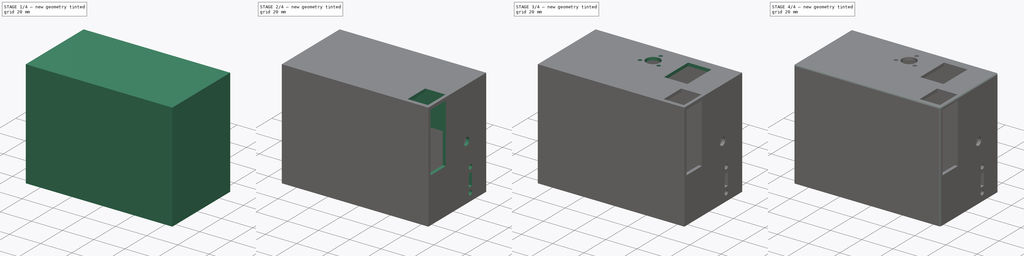
[diagram: build sequence overview — one tinted view per stage of 4, left to right]
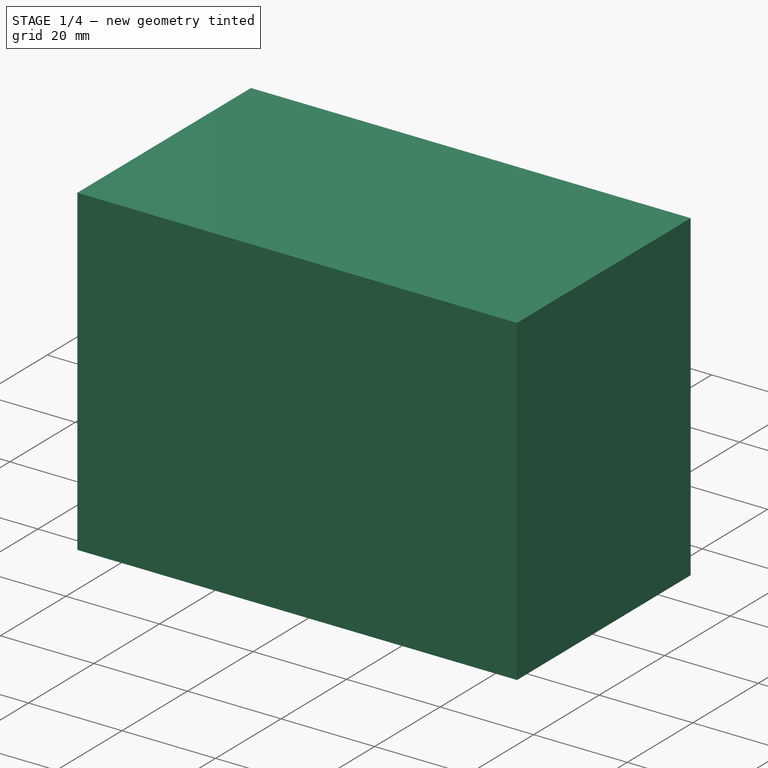
[diagram: stage 1 of 4 — iso view after this stage's code; geometry added in this stage tinted green]
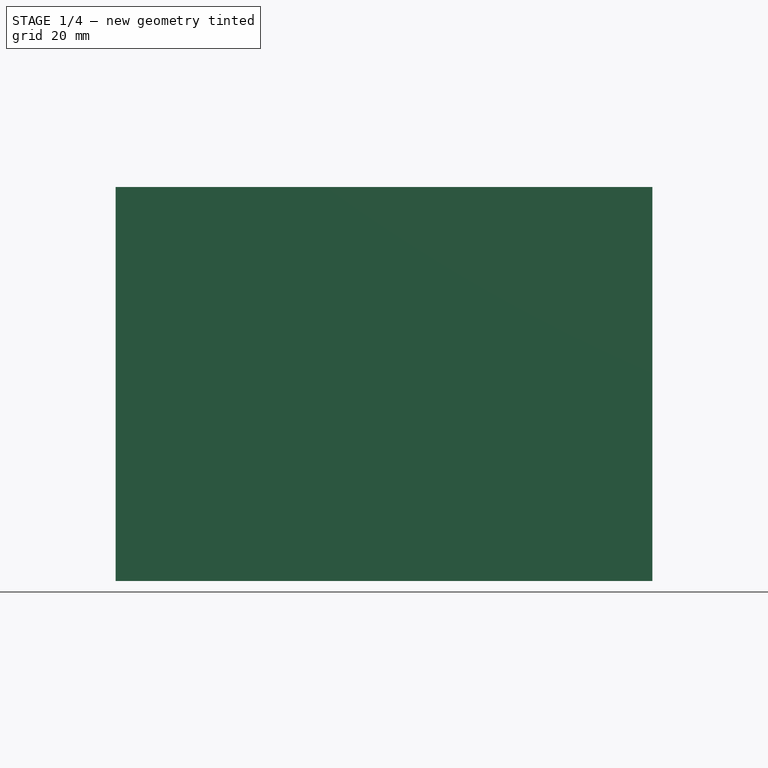
[diagram: stage 1 of 4 — front view after this stage's code; geometry added in this stage tinted green]
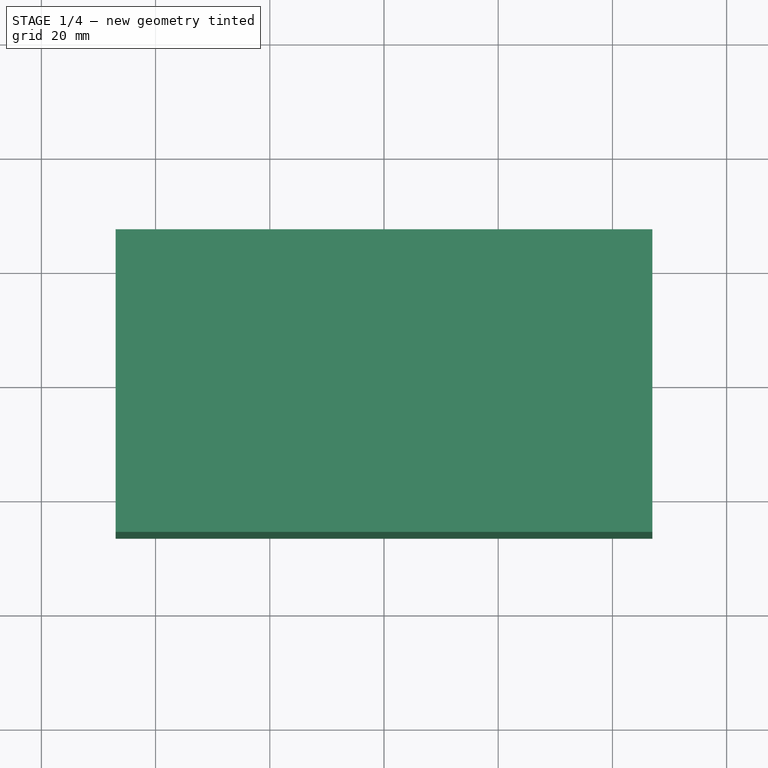
[diagram: stage 1 of 4 — top view after this stage's code; geometry added in this stage tinted green]
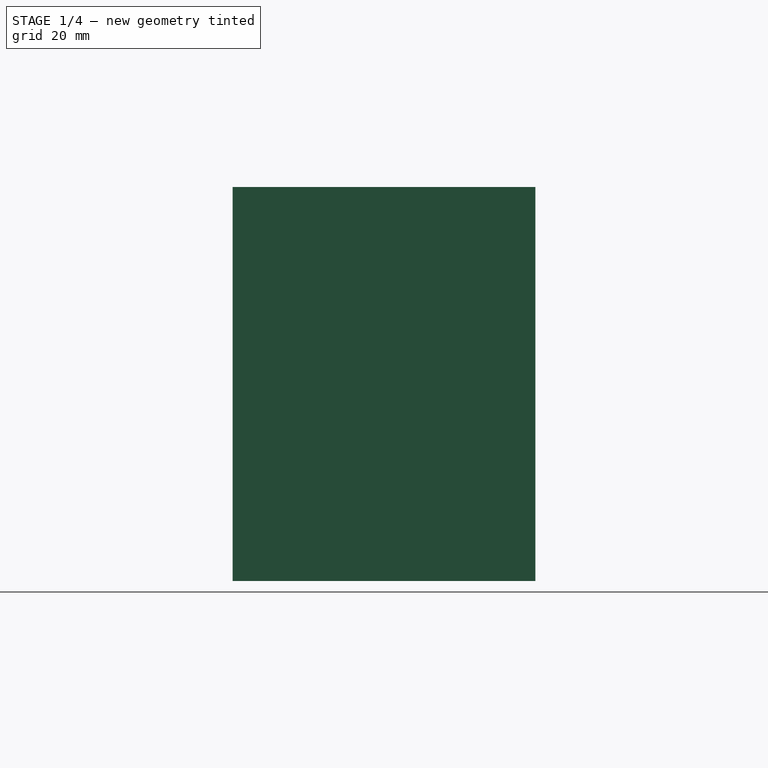
[diagram: stage 1 of 4 — right view after this stage's code; geometry added in this stage tinted green]
FCSTD DOCUMENT  (FreeCAD 0.18R16146 (Git))
Label: receiver_box
License: All rights reserved
LicenseURL: http://en.wikipedia.org/wiki/All_rights_reserved
objects: Sketcher::SketchObject×11, PartDesign::Pocket×9, PartDesign::Pad×2, PartDesign::Plane×1, PartDesign::Fillet×1, PartDesign::Body×1
note: 36 computed .brp shape members not serialized (recipe doc carries the construction recipe); baked Part::Feature solids carry a one-line shape summary decoded from their .brp

FEATURE [Sketcher::SketchObject] Sketch
  MapMode = 5
  Support = -> [XY_Plane]
  sketch-geometry (4):
    g0: LineSegment StartX=-47 StartY=26.5 StartZ=0 EndX=47 EndY=26.5 EndZ=0
    g1: LineSegment StartX=47 StartY=26.5 StartZ=0 EndX=47 EndY=-26.5 EndZ=0
    g2: LineSegment StartX=47 StartY=-26.5 StartZ=0 EndX=-47 EndY=-26.5 EndZ=0
    g3: LineSegment StartX=-47 StartY=-26.5 StartZ=0 EndX=-47 EndY=26.5 EndZ=0
  constraints (10):
    c: Coincident(g0,g1)
    c: Coincident(g1,g2)
    c: Coincident(g2,g3)
    c: Coincident(g3,g0)
    c: Horizontal(g2)
    c: Vertical(g1)
    c: Symmetric(g0,g0,g-2)
    c: Symmetric(g2,g0,g-1)
    c: DistanceX(g0,g0) = 94
    c: DistanceY(g3,g3) = 53
FEATURE [PartDesign::Pad] Pad
  Length = 69
  Length2 = 100
  Profile = -> Sketch
  Type = 0
FEATURE [Sketcher::SketchObject] Sketch001
  MapMode = 5
  Placement = pos=(0,0,0) rot=(1,0,0;3.14159rad)
  Support = -> [Pad]
  sketch-geometry (25):
    g0: LineSegment StartX=-40.0503 StartY=24.5 StartZ=0 EndX=-45 EndY=19.5503 EndZ=0
    g1: LineSegment StartX=-45 StartY=19.5503 StartZ=0 EndX=-45 EndY=5.1 EndZ=0
    g2: LineSegment StartX=-45 StartY=5.1 StartZ=0 EndX=-40 EndY=5.1 EndZ=0
    g3: LineSegment StartX=-40 StartY=5.1 StartZ=0 EndX=-40 EndY=3.3 EndZ=0
    g4: LineSegment StartX=-40 StartY=3.3 StartZ=0 EndX=-45 EndY=3.3 EndZ=0
    g5: LineSegment StartX=-45 StartY=3.3 StartZ=0 EndX=-45 EndY=1.5 EndZ=0
    g6: LineSegment StartX=-45 StartY=1.5 StartZ=0 EndX=-40 EndY=1.5 EndZ=0
    g7: LineSegment StartX=-40 StartY=1.5 StartZ=0 EndX=-40 EndY=-0.3 EndZ=0
    g8: LineSegment StartX=-40 StartY=-0.3 StartZ=0 EndX=-45 EndY=-0.3 EndZ=0
    g9: LineSegment StartX=-45 StartY=-0.3 StartZ=0 EndX=-45 EndY=-19.5503 EndZ=0
    g10: LineSegment StartX=-45 StartY=-19.5503 StartZ=0 EndX=-40.0503 EndY=-24.5 EndZ=0
    g11: LineSegment StartX=-40.0503 StartY=-24.5 StartZ=0 EndX=40.0503 EndY=-24.5 EndZ=0
    g12: LineSegment StartX=40.0503 StartY=-24.5 StartZ=0 EndX=45 EndY=-19.5503 EndZ=0
    g13: LineSegment StartX=45 StartY=-19.5503 StartZ=0 EndX=45 EndY=-0.3 EndZ=0
    g14: LineSegment StartX=45 StartY=-0.3 StartZ=0 EndX=40 EndY=-0.3 EndZ=0
    g15: LineSegment StartX=40 StartY=-0.3 StartZ=0 EndX=40 EndY=1.5 EndZ=0
    g16: LineSegment StartX=40 StartY=1.5 StartZ=0 EndX=45 EndY=1.5 EndZ=0
    g17: LineSegment StartX=45 StartY=1.5 StartZ=0 EndX=45 EndY=3.3 EndZ=0
    g18: LineSegment StartX=45 StartY=3.3 StartZ=0 EndX=40 EndY=3.3 EndZ=0
    g19: LineSegment StartX=40 StartY=3.3 StartZ=0 EndX=40 EndY=5.1 EndZ=0
    g20: LineSegment StartX=40 StartY=5.1 StartZ=0 EndX=45 EndY=5.1 EndZ=0
    g21: LineSegment StartX=45 StartY=5.1 StartZ=0 EndX=45 EndY=5.1 EndZ=0
    g22: LineSegment StartX=45 StartY=5.1 StartZ=0 EndX=17 EndY=5.1 EndZ=0
    g23: LineSegment StartX=17 StartY=5.1 StartZ=0 EndX=17 EndY=24.5 EndZ=0
    g24: LineSegment StartX=17 StartY=24.5 StartZ=0 EndX=-40.0503 EndY=24.5 EndZ=0
  constraints (71):
    c: Coincident(g0,g1)
    c: Vertical(g1)
    c: Coincident(g1,g2)
    c: Horizontal(g2)
    c: Coincident(g2,g3)
    c: Vertical(g3)
    c: Coincident(g3,g4)
    c: Horizontal(g4)
    c: Coincident(g4,g5)
    c: Vertical(g5)
    c: Coincident(g5,g6)
    c: Horizontal(g6)
    c: Coincident(g6,g7)
    c: Vertical(g7)
    c: Coincident(g7,g8)
    c: Horizontal(g8)
    c: Coincident(g8,g9)
    c: Coincident(g9,g10)
    c: Coincident(g10,g11)
    c: Coincident(g11,g12)
    c: Coincident(g12,g13)
    c: Vertical(g13)
    c: Coincident(g13,g14)
    c: Horizontal(g14)
    c: Coincident(g14,g15)
    c: Vertical(g15)
    c: Coincident(g15,g16)
    c: Horizontal(g16)
    c: Coincident(g16,g17)
    c: Vertical(g17)
    c: Coincident(g17,g18)
    c: Horizontal(g18)
    c: Coincident(g18,g19)
    c: Vertical(g19)
    c: Coincident(g19,g20)
    c: Horizontal(g20)
    c: Coincident(g20,g21)
    c: Vertical(g21)
    c: Coincident(g21,g22)
    c: Horizontal(g22)
    c: Coincident(g22,g23)
    c: Vertical(g23)
    c: Coincident(g23,g24)
    c: Coincident(g24,g0)
    c: Horizontal(g24)
    c: Symmetric(g11,g10,g-2)
    c: Symmetric(g9,g12,g-2)
    c: Symmetric(g9,g0,g-1)
    c: Symmetric(g0,g10,g-1)
    c: DistanceX(g9,g12) = 90
    c: Angle(g11,g10) = 2.35619
    c: DistanceY(g10,g0) = 49
    c: Distance(g0) = 7
    c: Equal(g2,g4)
    c: Equal(g4,g6)
    c: Equal(g6,g8)
    c: Equal(g8,g20)
    c: Equal(g20,g18)
    c: Equal(g18,g16)
    c: Equal(g16,g14)
    c: Equal(g3,g5)
    c: Equal(g5,g7)
    c: Equal(g7,g19)
    c: Equal(g19,g17)
    c: Equal(g17,g15)
    c: DistanceY(g7,g7) = 1.8
    c: Equal(g9,g13)
    c: DistanceX(g2,g2) = 5
    c: DistanceY(g11,g16) = 26
    c: DistanceY(g23,g23) = 19.4
    c: DistanceX(g22,g22) = 28
FEATURE [PartDesign::Pocket] Pocket
  BaseFeature = -> Pad
  Length = 67
  Length2 = 100
  Profile = -> Sketch001
  Type = 0
FEATURE [Sketcher::SketchObject] Sketch002
  MapMode = 5
  Placement = pos=(0,0,0) rot=(1,0,0;3.14159rad)
  Support = -> [Pocket]
  sketch-geometry (11):
    g0: LineSegment [constr] StartX=-44 StartY=23.5 StartZ=0 EndX=44 EndY=23.5 EndZ=0
    g1: LineSegment [constr] StartX=44 StartY=23.5 StartZ=0 EndX=44 EndY=-23.5 EndZ=0
    g2: LineSegment [constr] StartX=44 StartY=-23.5 StartZ=0 EndX=-44 EndY=-23.5 EndZ=0
    g3: LineSegment [constr] StartX=-44 StartY=-23.5 StartZ=0 EndX=-44 EndY=23.5 EndZ=0
    g4: Circle CenterX=-44 CenterY=23.5 CenterZ=0 NormalX=0 NormalY=0 NormalZ=1 AngleXU=0 Radius=1.15
    g5: Circle CenterX=-44 CenterY=-23.5 CenterZ=0 NormalX=0 NormalY=0 NormalZ=1 AngleXU=0 Radius=1.15
    g6: Circle CenterX=44 CenterY=-23.5 CenterZ=0 NormalX=0 NormalY=0 NormalZ=1 AngleXU=0 Radius=1.15
    g7: LineSegment StartX=45 StartY=24.5 StartZ=0 EndX=17 EndY=24.5 EndZ=0
    g8: LineSegment StartX=17 StartY=24.5 StartZ=0 EndX=17 EndY=5.1 EndZ=0
    g9: LineSegment StartX=17 StartY=5.1 StartZ=0 EndX=45 EndY=5.1 EndZ=0
    g10: LineSegment StartX=45 StartY=5.1 StartZ=0 EndX=45 EndY=24.5 EndZ=0
  constraints (28):
    c: Coincident(g0,g1)
    c: Coincident(g1,g2)
    c: Coincident(g2,g3)
    c: Coincident(g3,g0)
    c: Horizontal(g2)
    c: Vertical(g3)
    c: Symmetric(g0,g0,g-2)
    c: Symmetric(g0,g1,g-1)
    c: DistanceY(g1,g1) = 47
    c: DistanceX(g0,g0) = 88
    c: Coincident(g4,g0)
    c: Coincident(g5,g2)
    c: Coincident(g6,g1)
    c: Equal(g4,g5)
    c: Equal(g5,g6)
    c: Diameter(g4) = 2.3
    c: Coincident(g7,g8)
    c: Coincident(g8,g9)
    c: Coincident(g9,g10)
    c: Coincident(g10,g7)
    c: Horizontal(g7)
    c: Horizontal(g9)
    c: Vertical(g8)
    c: Vertical(g10)
    c: DistanceY(g10,g10) = 19.4
    c: DistanceX(g7,g7) = 28
    c: DistanceY(g-1,g7) = 24.5
    c: DistanceX(g-1,g7) = 45
FEATURE [PartDesign::Pocket] Pocket001
  BaseFeature = -> Pocket
  Length = 47
  Length2 = 100
  Profile = -> Sketch002
  Type = 0
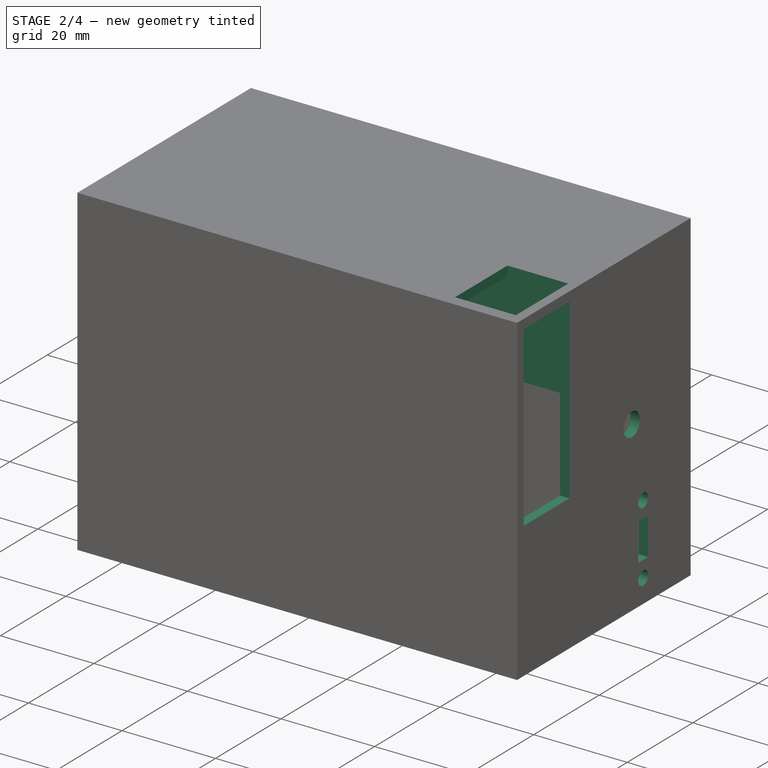
[diagram: stage 2 of 4 — iso view after this stage's code; geometry added in this stage tinted green]
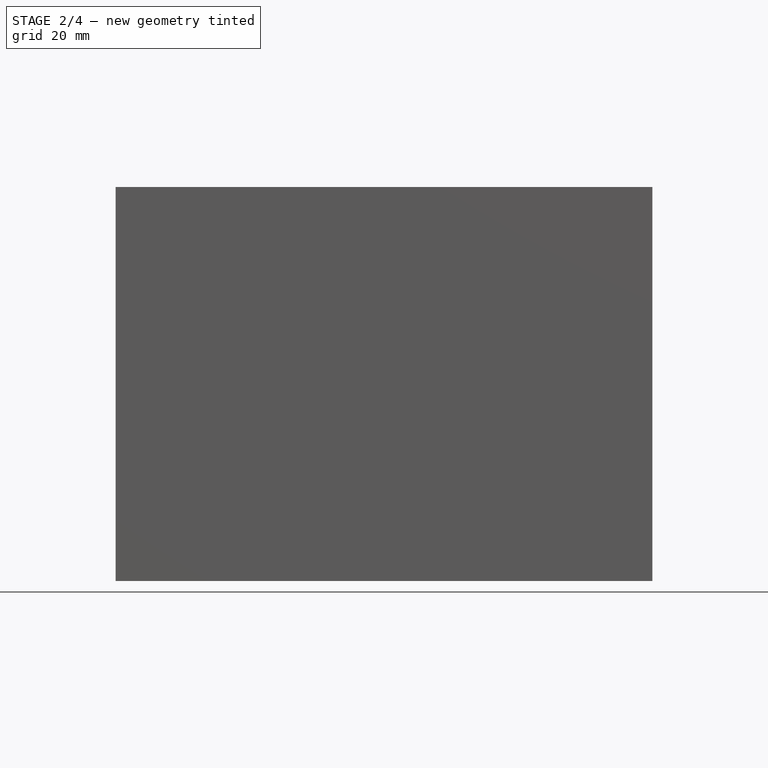
[diagram: stage 2 of 4 — front view after this stage's code; geometry added in this stage tinted green]
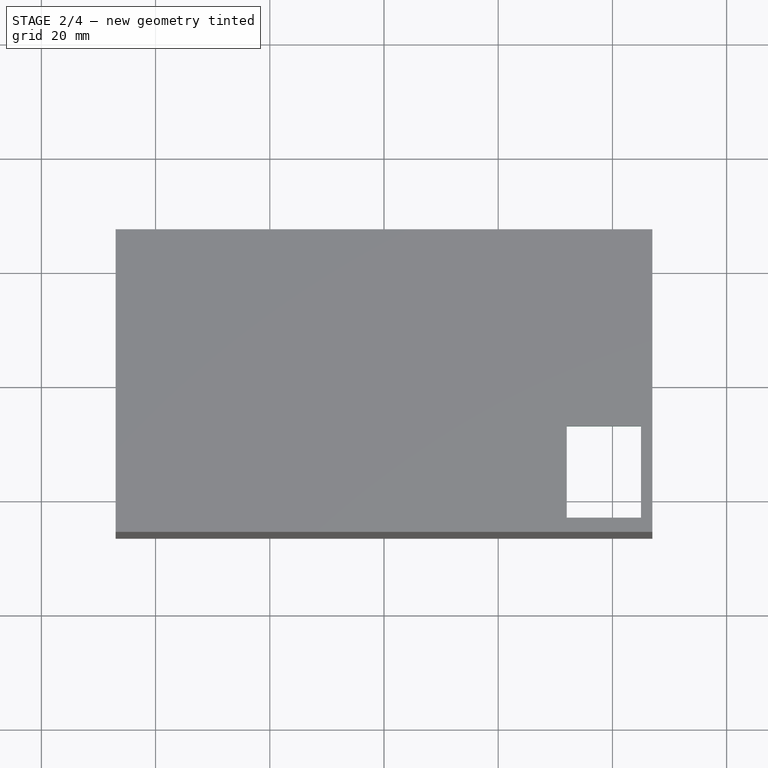
[diagram: stage 2 of 4 — top view after this stage's code; geometry added in this stage tinted green]
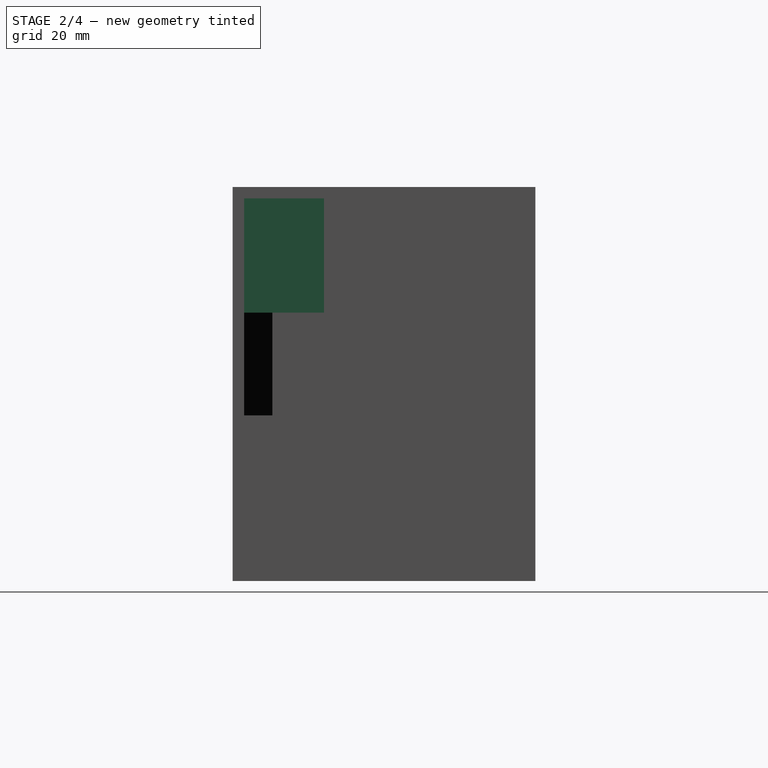
[diagram: stage 2 of 4 — right view after this stage's code; geometry added in this stage tinted green]
FEATURE [Sketcher::SketchObject] Sketch003
  MapMode = 5
  Placement = pos=(0,0,47) rot=(1,0,0;3.14159rad)
  Support = -> [Pocket001]
  sketch-geometry (4):
    g0: LineSegment StartX=45 StartY=24.5 StartZ=0 EndX=18.8 EndY=24.5 EndZ=0
    g1: LineSegment StartX=18.8 StartY=24.5 StartZ=0 EndX=18.8 EndY=7.3 EndZ=0
    g2: LineSegment StartX=18.8 StartY=7.3 StartZ=0 EndX=45 EndY=7.3 EndZ=0
    g3: LineSegment StartX=45 StartY=7.3 StartZ=0 EndX=45 EndY=24.5 EndZ=0
  constraints (12):
    c: Coincident(g0,g1)
    c: Coincident(g1,g2)
    c: Coincident(g2,g3)
    c: Coincident(g3,g0)
    c: Horizontal(g0)
    c: Horizontal(g2)
    c: Vertical(g1)
    c: Vertical(g3)
    c: DistanceX(g-1,g0) = 45
    c: DistanceY(g-1,g0) = 24.5
    c: DistanceX(g2,g2) = 26.2
    c: DistanceY(g1,g1) = 17.2
FEATURE [PartDesign::Pocket] Pocket002
  BaseFeature = -> Pocket001
  Length = 20
  Length2 = 100
  Profile = -> Sketch003
  Type = 0
FEATURE [Sketcher::SketchObject] Sketch004
  MapMode = 5
  Placement = pos=(0,0,67) rot=(1,0,0;3.14159rad)
  Support = -> [Pocket002]
  sketch-geometry (4):
    g0: LineSegment StartX=32 StartY=24 StartZ=0 EndX=45 EndY=24 EndZ=0
    g1: LineSegment StartX=45 StartY=24 StartZ=0 EndX=45 EndY=8 EndZ=0
    g2: LineSegment StartX=45 StartY=8 StartZ=0 EndX=32 EndY=8 EndZ=0
    g3: LineSegment StartX=32 StartY=8 StartZ=0 EndX=32 EndY=24 EndZ=0
  constraints (12):
    c: Coincident(g0,g1)
    c: Coincident(g1,g2)
    c: Coincident(g2,g3)
    c: Coincident(g3,g0)
    c: Horizontal(g0)
    c: Horizontal(g2)
    c: Vertical(g1)
    c: Vertical(g3)
    c: DistanceY(g-1,g0) = 24
    c: DistanceY(g1,g1) = 16
    c: DistanceX(g0,g0) = 13
    c: DistanceX(g-1,g0) = 45
FEATURE [PartDesign::Pocket] Pocket003
  BaseFeature = -> Pocket002
  Length = 5
  Length2 = 100
  Profile = -> Sketch004
  Type = 0
FEATURE [Sketcher::SketchObject] Sketch005
  MapMode = 5
  Placement = pos=(47,0,0) rot=(0.57735,0.57735,0.57735;2.0944rad)
  Support = -> [Pocket003]
  sketch-geometry (12):
    g0: LineSegment StartX=-24.5 StartY=29 StartZ=0 EndX=-10.5 EndY=29 EndZ=0
    g1: LineSegment StartX=-10.5 StartY=29 StartZ=0 EndX=-10.5 EndY=67 EndZ=0
    g2: LineSegment StartX=-10.5 StartY=67 StartZ=0 EndX=-24.5 EndY=67 EndZ=0
    g3: LineSegment StartX=-24.5 StartY=67 StartZ=0 EndX=-24.5 EndY=29 EndZ=0
    g4: LineSegment [constr] StartX=12 StartY=0 StartZ=0 EndX=12 EndY=50 EndZ=0
    g5: Circle CenterX=12 CenterY=5 CenterZ=0 NormalX=0 NormalY=0 NormalZ=1 AngleXU=0 Radius=1.5
    g6: Circle CenterX=12 CenterY=20 CenterZ=0 NormalX=0 NormalY=0 NormalZ=1 AngleXU=0 Radius=1.5
    g7: LineSegment StartX=10.5 StartY=8.5 StartZ=0 EndX=13.5 EndY=8.5 EndZ=0
    g8: LineSegment StartX=13.5 StartY=8.5 StartZ=0 EndX=13.5 EndY=16.5 EndZ=0
    g9: LineSegment StartX=13.5 StartY=16.5 StartZ=0 EndX=10.5 EndY=16.5 EndZ=0
    g10: LineSegment StartX=10.5 StartY=16.5 StartZ=0 EndX=10.5 EndY=8.5 EndZ=0
    g11: Circle CenterX=8.5 CenterY=36 CenterZ=0 NormalX=0 NormalY=0 NormalZ=1 AngleXU=0 Radius=2.5
  constraints (36):
    c: Coincident(g0,g1)
    c: Coincident(g1,g2)
    c: Coincident(g2,g3)
    c: Coincident(g3,g0)
    c: Horizontal(g0)
    c: Horizontal(g2)
    c: Vertical(g1)
    c: Vertical(g3)
    c: DistanceX(g2,g2) = 14
    c: DistanceY(g1,g1) = 38
    c: DistanceX(g0,g-1) = 24.5
    c: DistanceY(g-1,g2) = 67
    c: PointOnObject(g4,g-1)
    c: Vertical(g4)
    c: PointOnObject(g5,g4)
    c: PointOnObject(g6,g4)
    c: DistanceY(g5,g6) = 15
    c: Equal(g6,g5)
    c: Diameter(g6) = 3
    c: Coincident(g7,g8)
    c: Coincident(g8,g9)
    c: Coincident(g9,g10)
    c: Coincident(g10,g7)
    c: Horizontal(g7)
    c: Vertical(g8)
    c: Vertical(g10)
    c: Symmetric(g8,g9,g4)
    c: DistanceY(g8,g8) = 8
    c: DistanceX(g9,g9) = 3
    c: DistanceY(g5,g7) = 3.5
    c: DistanceY(g-1,g5) = 5
    c: DistanceX(g-1,g4) = 12
    c: DistanceY(g4,g4) = 50
    c: Diameter(g11) = 5
    c: DistanceY(g-1,g11) = 36
    c: DistanceX(g-1,g11) = 8.5
FEATURE [PartDesign::Pocket] Pocket004
  BaseFeature = -> Pocket003
  Length = 5
  Length2 = 100
  Profile = -> Sketch005
  Type = 0
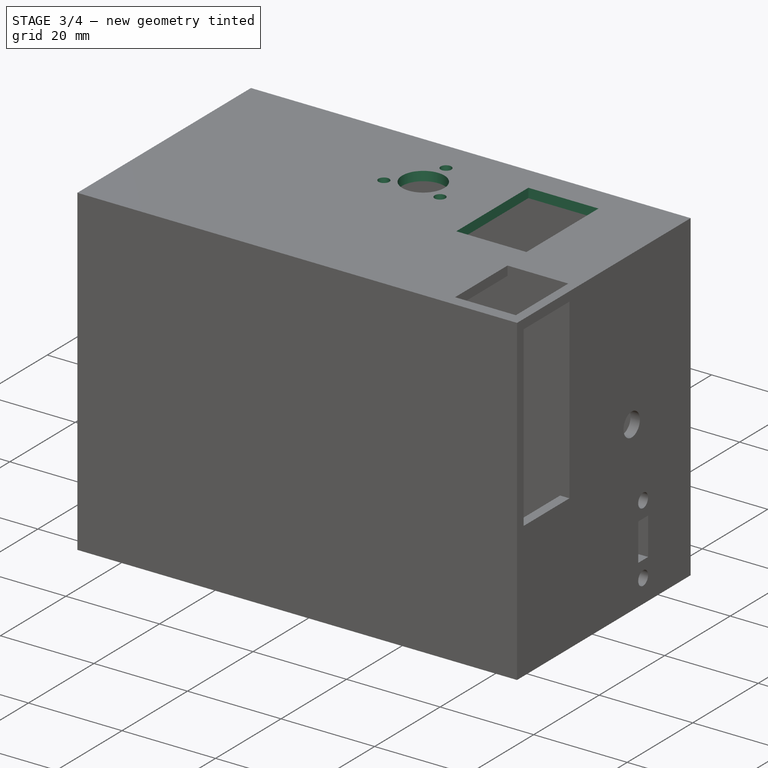
[diagram: stage 3 of 4 — iso view after this stage's code; geometry added in this stage tinted green]
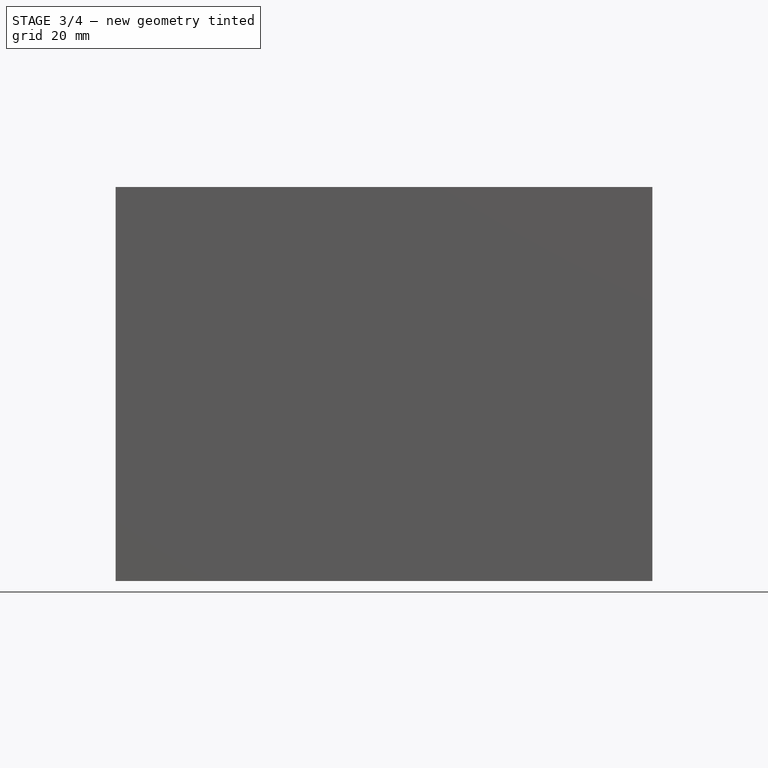
[diagram: stage 3 of 4 — front view after this stage's code; geometry added in this stage tinted green]
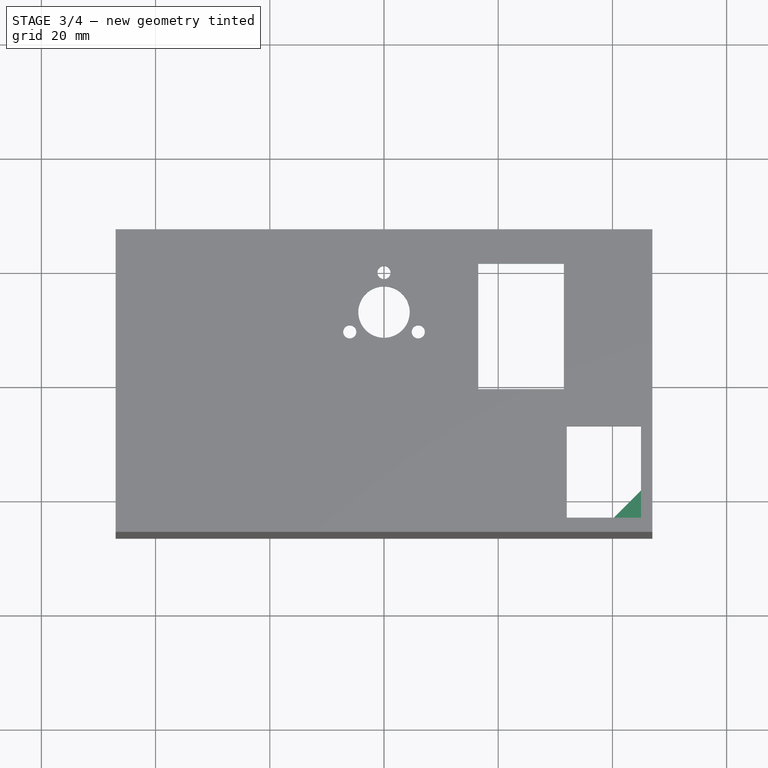
[diagram: stage 3 of 4 — top view after this stage's code; geometry added in this stage tinted green]
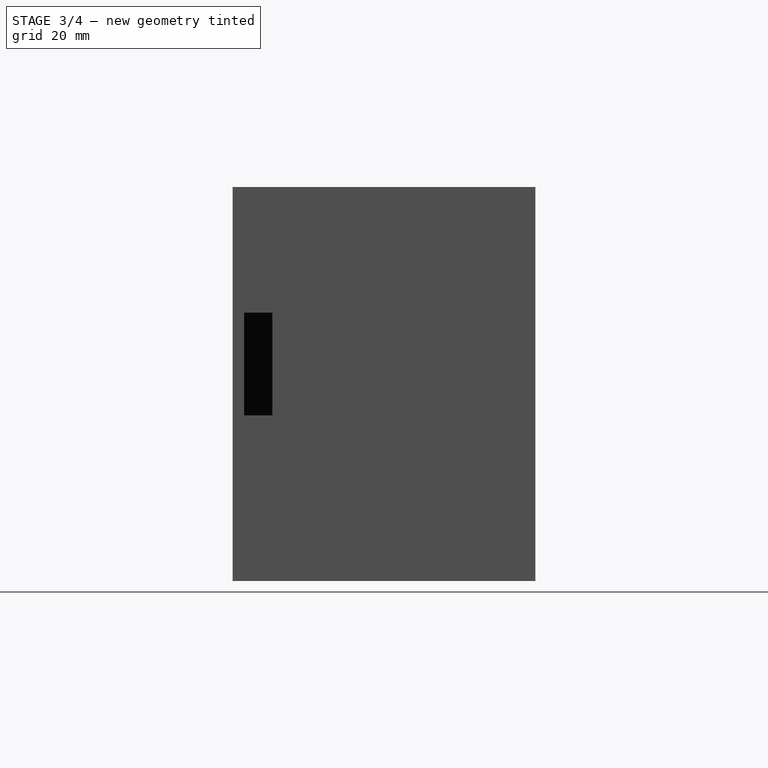
[diagram: stage 3 of 4 — right view after this stage's code; geometry added in this stage tinted green]
FEATURE [Sketcher::SketchObject] Sketch006
  MapMode = 5
  Placement = pos=(0,26.5,0) rot=(0,0.707107,0.707107;3.14159rad)
  Support = -> [Pocket004]
  sketch-geometry (17):
    g0: Circle CenterX=0 CenterY=39 CenterZ=0 NormalX=0 NormalY=0 NormalZ=1 AngleXU=0 Radius=2.5
    g1: ArcOfCircle CenterX=0 CenterY=39 CenterZ=0 NormalX=0 NormalY=0 NormalZ=1 AngleXU=0 Radius=10 StartAngle=2.61799 EndAngle=3.66519
    g2: ArcOfCircle CenterX=0 CenterY=39 CenterZ=0 NormalX=0 NormalY=0 NormalZ=1 AngleXU=0 Radius=8 StartAngle=2.61799 EndAngle=3.66519
    g3: LineSegment StartX=-5 StartY=30.3397 StartZ=0 EndX=-4 EndY=32.0718 EndZ=0
    g4: LineSegment StartX=5 StartY=30.3397 StartZ=0 EndX=4 EndY=32.0718 EndZ=0
    g5: LineSegment StartX=-8.66025 StartY=34 StartZ=0 EndX=-6.9282 EndY=35 EndZ=0
    g6: LineSegment StartX=-8.66025 StartY=44 StartZ=0 EndX=-6.9282 EndY=43 EndZ=0
    g7: LineSegment StartX=-4 StartY=45.9282 StartZ=0 EndX=-5 EndY=47.6603 EndZ=0
    g8: LineSegment StartX=4 StartY=45.9282 StartZ=0 EndX=5 EndY=47.6603 EndZ=0
    g9: LineSegment StartX=6.9282 StartY=43 StartZ=0 EndX=8.66025 EndY=44 EndZ=0
    g10: LineSegment StartX=6.9282 StartY=35 StartZ=0 EndX=8.66025 EndY=34 EndZ=0
    g11: ArcOfCircle CenterX=0 CenterY=39 CenterZ=0 NormalX=0 NormalY=0 NormalZ=1 AngleXU=0 Radius=10 StartAngle=4.18879 EndAngle=5.23599
    g12: ArcOfCircle CenterX=0 CenterY=39 CenterZ=0 NormalX=0 NormalY=0 NormalZ=1 AngleXU=0 Radius=8 StartAngle=4.18879 EndAngle=5.23599
    g13: ArcOfCircle CenterX=0 CenterY=39 CenterZ=0 NormalX=0 NormalY=0 NormalZ=1 AngleXU=0 Radius=8 StartAngle=5.75959 EndAngle=6.80678
    g14: ArcOfCircle CenterX=0 CenterY=39 CenterZ=0 NormalX=0 NormalY=0 NormalZ=1 AngleXU=0 Radius=10 StartAngle=5.75959 EndAngle=6.80678
    g15: ArcOfCircle CenterX=0 CenterY=39 CenterZ=0 NormalX=0 NormalY=0 NormalZ=1 AngleXU=0 Radius=10 StartAngle=1.0472 EndAngle=2.0944
    g16: ArcOfCircle CenterX=0 CenterY=39 CenterZ=0 NormalX=0 NormalY=0 NormalZ=1 AngleXU=0 Radius=8 StartAngle=1.0472 EndAngle=2.0944
  constraints (55):
    c: PointOnObject(g1,g-2)
    c: DistanceY(g-1,g1) = 39
    c: Diameter(g0) = 5
    c: Coincident(g2,g1)
    c: PointOnObject(g8,g1)
    c: PointOnObject(g1,g3)
    c: PointOnObject(g4,g1)
    c: PointOnObject(g1,g4)
    c: PointOnObject(g9,g1)
    c: PointOnObject(g1,g5)
    c: PointOnObject(g10,g1)
    c: PointOnObject(g1,g6)
    c: Angle(g5,g6) = 2.0944
    c: Angle(g4,g3) = 2.0944
    c: Angle(g5,g3) = 0.523599
    c: Angle(g-2,g3) = 2.61799
    c: Diameter(g2) = 16
    c: Diameter(g1) = 20
    c: Tangent(g4,g7)
    c: PointOnObject(g8,g2)
    c: Tangent(g3,g8)
    c: PointOnObject(g9,g2)
    c: Tangent(g5,g9)
    c: PointOnObject(g10,g2)
    c: Tangent(g6,g10)
    c: PointOnObject(g4,g2)
    c: Coincident(g2,g6)
    c: Coincident(g16,g7)
    c: Coincident(g1,g6)
    c: Coincident(g15,g7)
    c: Equal(g1,g11)
    c: Coincident(g1,g5)
    c: Coincident(g11,g3)
    c: Coincident(g1,g11)
    c: Equal(g2,g12)
    c: Coincident(g2,g5)
    c: Coincident(g12,g3)
    c: Coincident(g2,g12)
    c: Equal(g12,g13)
    c: PointOnObject(g12,g4)
    c: PointOnObject(g13,g10)
    c: Coincident(g12,g13)
    c: Equal(g11,g14)
    c: PointOnObject(g11,g4)
    c: PointOnObject(g14,g10)
    c: Coincident(g11,g14)
    c: Equal(g14,g15)
    c: PointOnObject(g14,g9)
    c: PointOnObject(g15,g8)
    c: Coincident(g14,g15)
    c: Equal(g13,g16)
    c: PointOnObject(g13,g9)
    c: PointOnObject(g16,g8)
    c: Coincident(g13,g16)
    c: Coincident(g0,g1)
FEATURE [PartDesign::Pocket] Pocket005
  BaseFeature = -> Pocket004
  Length = 5
  Length2 = 100
  Profile = -> Sketch006
  Type = 0
FEATURE [Sketcher::SketchObject] Sketch007
  MapMode = 5
  Placement = pos=(0,0,67) rot=(1,0,0;3.14159rad)
  Support = -> [Pocket005]
  sketch-geometry (12):
    g0: Circle CenterX=0 CenterY=-12 CenterZ=0 NormalX=0 NormalY=0 NormalZ=1 AngleXU=0 Radius=4.5
    g1: LineSegment [constr] StartX=6 StartY=-8.5359 StartZ=0 EndX=-6 EndY=-8.5359 EndZ=0
    g2: LineSegment [constr] StartX=-6 StartY=-8.5359 StartZ=0 EndX=0 EndY=-18.9282 EndZ=0
    g3: LineSegment [constr] StartX=0 StartY=-18.9282 StartZ=0 EndX=6 EndY=-8.5359 EndZ=0
    g4: Circle [constr] CenterX=0 CenterY=-12 CenterZ=0 NormalX=0 NormalY=0 NormalZ=1 AngleXU=0 Radius=6.9282
    g5: Circle CenterX=6 CenterY=-8.5359 CenterZ=0 NormalX=0 NormalY=0 NormalZ=1 AngleXU=0 Radius=1.15
    g6: Circle CenterX=0 CenterY=-18.9282 CenterZ=0 NormalX=0 NormalY=0 NormalZ=1 AngleXU=0 Radius=1.15
    g7: Circle CenterX=-6 CenterY=-8.5359 CenterZ=0 NormalX=0 NormalY=0 NormalZ=1 AngleXU=0 Radius=1.15
    g8: LineSegment StartX=16.5 StartY=1.5 StartZ=0 EndX=31.5 EndY=1.5 EndZ=0
    g9: LineSegment StartX=31.5 StartY=1.5 StartZ=0 EndX=31.5 EndY=-20.5 EndZ=0
    g10: LineSegment StartX=31.5 StartY=-20.5 StartZ=0 EndX=16.5 EndY=-20.5 EndZ=0
    g11: LineSegment StartX=16.5 StartY=-20.5 StartZ=0 EndX=16.5 EndY=1.5 EndZ=0
  constraints (32):
    c: PointOnObject(g0,g-2)
    c: Diameter(g0) = 9
    c: Coincident(g1,g2)
    c: Coincident(g2,g3)
    c: Coincident(g3,g1)
    c: Equal(g1,g2)
    c: Equal(g1,g3)
    c: PointOnObject(g1,g4)
    c: PointOnObject(g2,g4)
    c: PointOnObject(g3,g4)
    c: Coincident(g4,g0)
    c: Horizontal(g1)
    c: DistanceY(g0,g-1) = 12
    c: DistanceX(g1,g1) = 12
    c: Coincident(g5,g1)
    c: Coincident(g6,g2)
    c: Coincident(g7,g1)
    c: Equal(g5,g6)
    c: Equal(g6,g7)
    c: Diameter(g5) = 2.3
    c: Coincident(g8,g9)
    c: Coincident(g9,g10)
    c: Coincident(g10,g11)
    c: Coincident(g11,g8)
    c: Horizontal(g8)
    c: Horizontal(g10)
    c: Vertical(g9)
    c: Vertical(g11)
    c: DistanceX(g8,g8) = 15
    c: DistanceY(g9,g9) = 22
    c: DistanceY(g-1,g8) = 1.5
    c: DistanceX(g9) = 31.5
FEATURE [PartDesign::Pocket] Pocket006
  BaseFeature = -> Pocket005
  Length = 5
  Length2 = 100
  Profile = -> Sketch007
  Type = 0
FEATURE [PartDesign::Plane] DatumPlane
  Length = 108.117
  MapMode = 5
  Placement = pos=(0,0,0) rot=(1,0,0;3.14159rad)
  ResizeMode = 0
  Support = -> [Pocket006]
  Width = 67.1167
FEATURE [Sketcher::SketchObject] Sketch008
  MapMode = 5
  Placement = pos=(0,0,0) rot=(1,0,0;3.14159rad)
  Support = -> [DatumPlane]
  sketch-geometry (3):
    g0: LineSegment StartX=38.836 StartY=24.5 StartZ=0 EndX=45 EndY=24.5 EndZ=0
    g1: LineSegment StartX=45 StartY=24.5 StartZ=0 EndX=45 EndY=18.336 EndZ=0
    g2: LineSegment StartX=45 StartY=18.336 StartZ=0 EndX=38.836 EndY=24.5 EndZ=0
  constraints (7):
    c: Horizontal(g0)
    c: Coincident(g0,g1)
    c: Vertical(g1)
    c: Coincident(g1,g2)
    c: Coincident(g2,g0)
    c: Equal(g0,g1)
    c: DistanceX(g-1,g0) = 45
FEATURE [PartDesign::Pad] Pad001
  BaseFeature = -> Pocket006
  Length = 15
  Length2 = 20
  Profile = -> Sketch008
  Reversed = true
  Type = 0
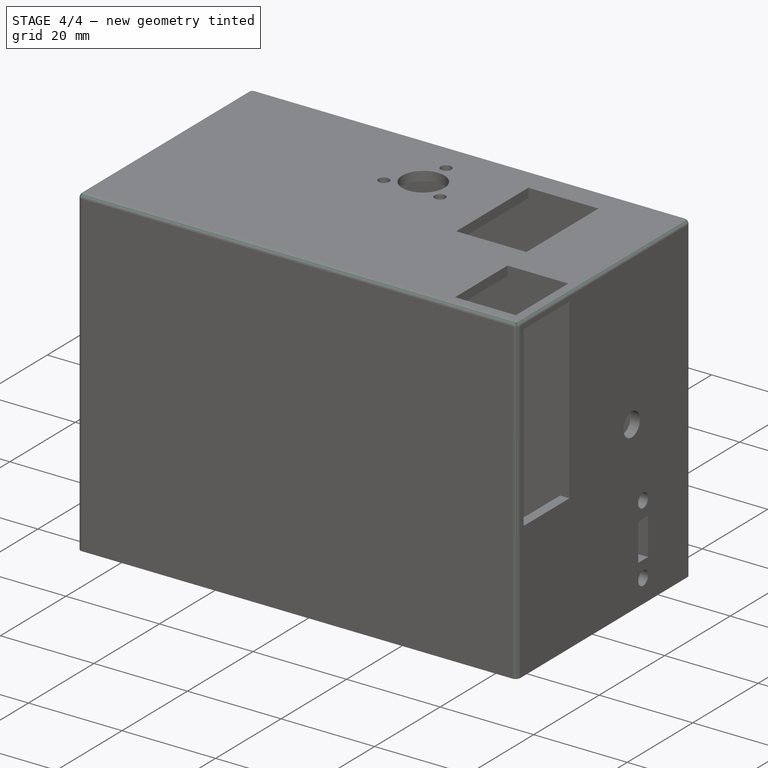
[diagram: stage 4 of 4 — iso view after this stage's code; geometry added in this stage tinted green]
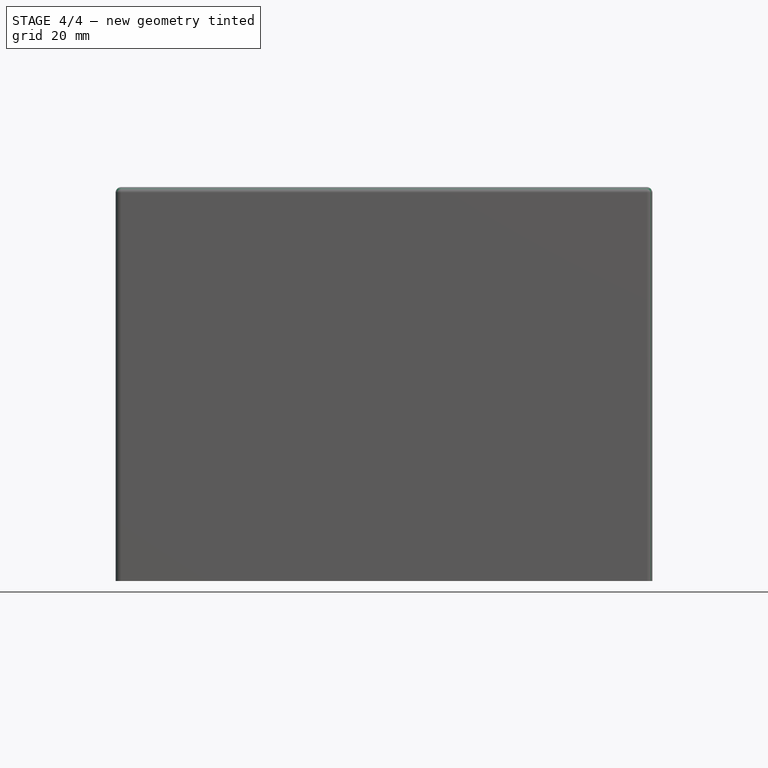
[diagram: stage 4 of 4 — front view after this stage's code; geometry added in this stage tinted green]
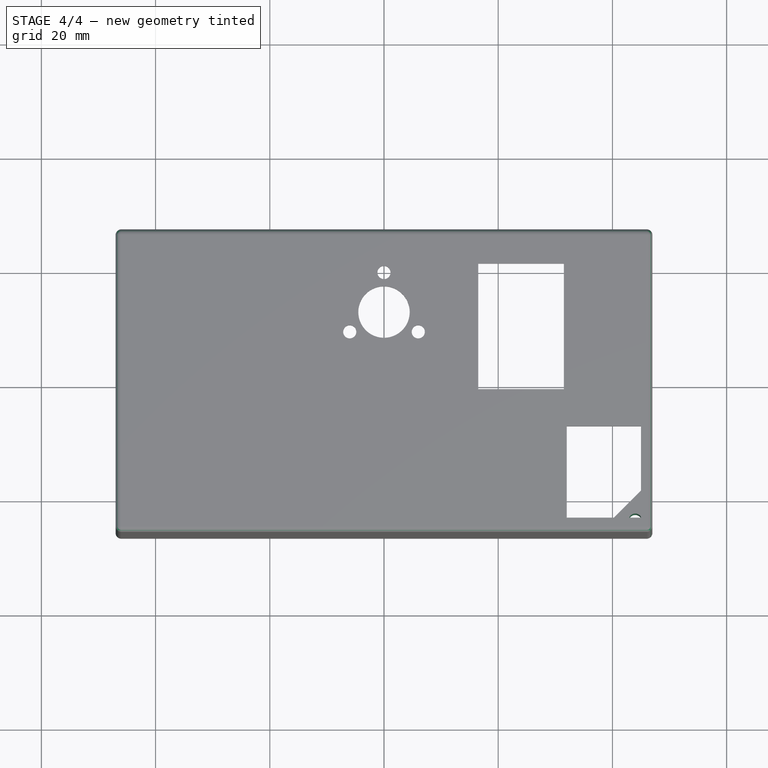
[diagram: stage 4 of 4 — top view after this stage's code; geometry added in this stage tinted green]
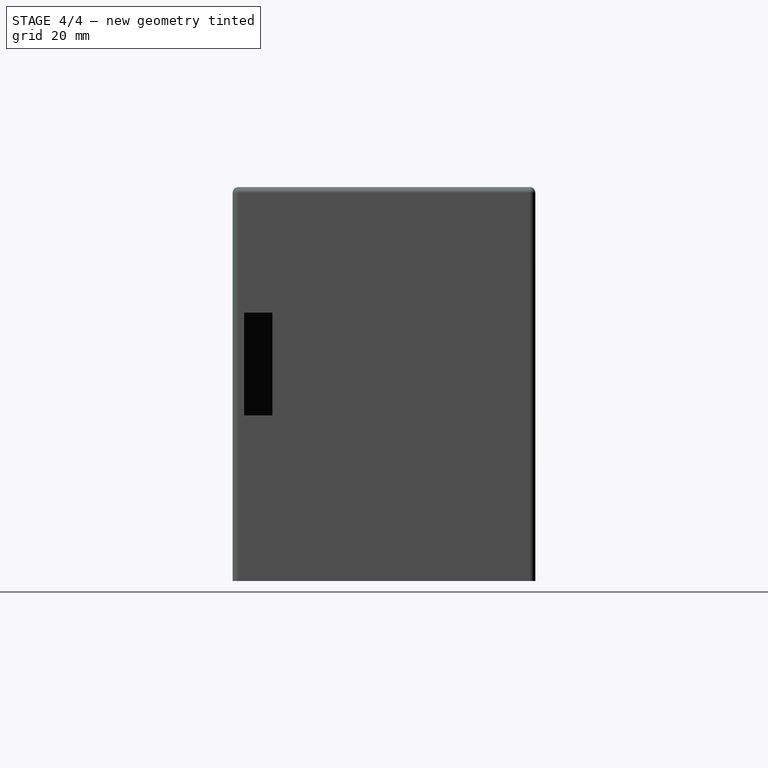
[diagram: stage 4 of 4 — right view after this stage's code; geometry added in this stage tinted green]
FEATURE [Sketcher::SketchObject] Sketch009
  MapMode = 5
  Placement = pos=(0,0,0) rot=(1,0,0;3.14159rad)
  Support = -> [Pad001]
  sketch-geometry (1):
    g0: Circle CenterX=44 CenterY=23.5 CenterZ=0 NormalX=0 NormalY=0 NormalZ=1 AngleXU=0 Radius=1.15
  constraints (3):
    c: Diameter(g0) = 2.3
    c: DistanceX(g-1,g0) = 44
    c: DistanceY(g-1,g0) = 23.5
FEATURE [PartDesign::Pocket] Pocket007
  BaseFeature = -> Pad001
  Length = 5
  Length2 = 100
  Profile = -> Sketch009
  Type = 2
FEATURE [Sketcher::SketchObject] Sketch010
  MapMode = 5
  Placement = pos=(0,0.3,0) rot=(0,0.707107,0.707107;3.14159rad)
  Support = -> [Pocket007]
  sketch-geometry (8):
    g0: LineSegment [constr] StartX=-42 StartY=64.9 StartZ=0 EndX=42 EndY=64.9 EndZ=0
    g1: LineSegment [constr] StartX=42 StartY=64.9 StartZ=0 EndX=42 EndY=7.9 EndZ=0
    g2: LineSegment [constr] StartX=42 StartY=7.9 StartZ=0 EndX=-42 EndY=7.9 EndZ=0
    g3: LineSegment [constr] StartX=-42 StartY=7.9 StartZ=0 EndX=-42 EndY=64.9 EndZ=0
    g4: Circle CenterX=-42 CenterY=64.9 CenterZ=0 NormalX=0 NormalY=0 NormalZ=1 AngleXU=0 Radius=1.125
    g5: Circle CenterX=-42 CenterY=7.9 CenterZ=0 NormalX=0 NormalY=0 NormalZ=1 AngleXU=0 Radius=1.125
    g6: Circle CenterX=42 CenterY=64.9 CenterZ=0 NormalX=0 NormalY=0 NormalZ=1 AngleXU=0 Radius=1.125
    g7: Circle CenterX=42 CenterY=7.9 CenterZ=0 NormalX=0 NormalY=0 NormalZ=1 AngleXU=0 Radius=1.125
  constraints (19):
    c: Coincident(g0,g1)
    c: Coincident(g1,g2)
    c: Coincident(g2,g3)
    c: Coincident(g3,g0)
    c: Horizontal(g2)
    c: Vertical(g1)
    c: Vertical(g3)
    c: Symmetric(g0,g0,g-2)
    c: DistanceY(g1,g1) = 57
    c: DistanceX(g0,g0) = 84
    c: DistanceY(g-1,g0) = 64.9
    c: Coincident(g4,g0)
    c: Coincident(g5,g2)
    c: Coincident(g6,g0)
    c: Coincident(g7,g1)
    c: Diameter(g4) = 2.25
    c: Equal(g4,g6)
    c: Equal(g6,g7)
    c: Equal(g7,g5)
FEATURE [PartDesign::Pocket] Pocket008
  BaseFeature = -> Pocket007
  Length = 10
  Length2 = 100
  Profile = -> Sketch010
  Type = 0
FEATURE [PartDesign::Fillet] Fillet
  Base = -> Pocket008 [Edge1,Edge3,Edge24,Edge62,Edge61,Edge4,Edge75,Edge22]
  BaseFeature = -> Pocket008
  Radius = 1
FEATURE [PartDesign::Body] Body
  Group = -> [Sketch,Pad,Sketch001,Pocket,Sketch002,Pocket001,Sketch003,Pocket002,Sketch004,Pocket003,Sketch005,Pocket004,Sketch006,Pocket005,Sketch007,Pocket006,DatumPlane,Sketch008,Pad001,Sketch009,Pocket007,Sketch010,Pocket008,Fillet]
  Origin = -> Origin
  Tip = -> Fillet
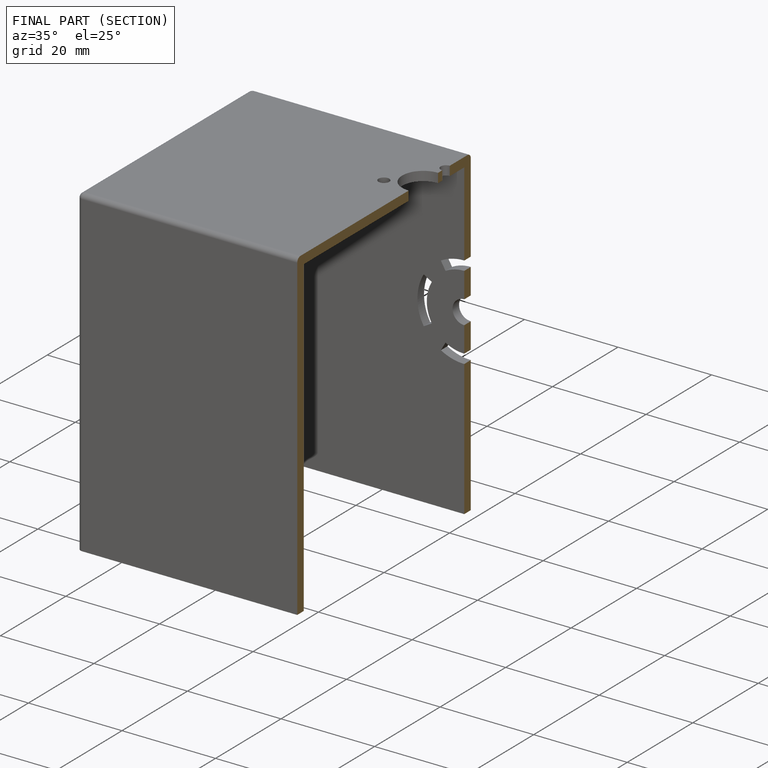
[diagram: finished part — half-section view (interior)]
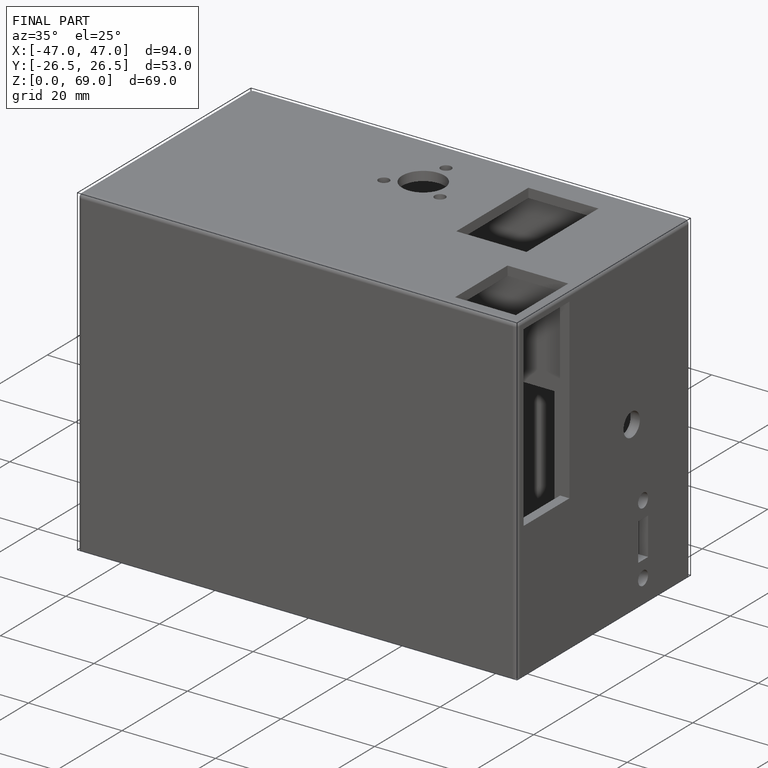
[diagram: finished part — iso view with bounding-box wireframe]
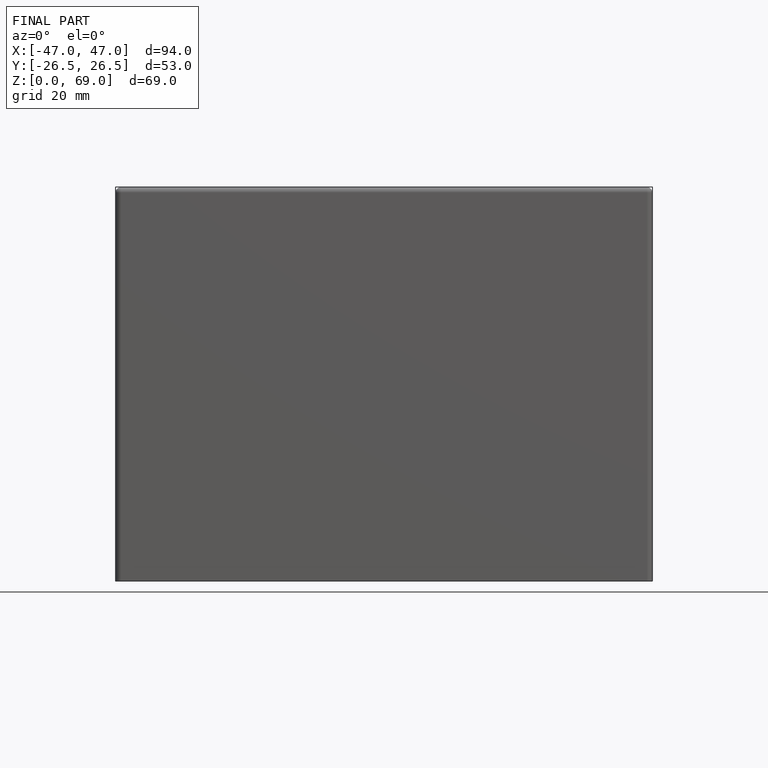
[diagram: finished part — front view with bounding-box wireframe]
